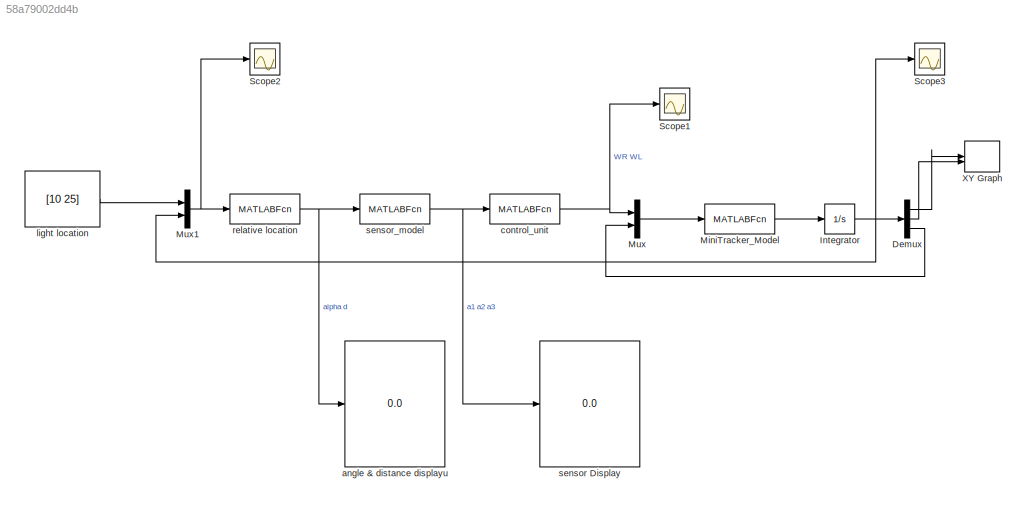
MODEL slx_58a79002dd4b
KIND model
CONFIG AbsTol = auto
CONFIG EnableMultiTasking = off
CONFIG FixedStep = auto
CONFIG MaxStep = auto
CONFIG MinStep = auto
CONFIG RelTol = 1e-3
CONFIG SampleTimeConstraint = Unconstrained
CONFIG SolverName = VariableStepAuto
CONFIG StartTime = 0.0
CONFIG StopTime = 100
BLOCK [Demux] Demux
  Outputs = 3
BLOCK [Integrator] Integrator
  InitialCondition = [0 0 pi/2]
BLOCK [MATLABFcn] MiniTracker_Model
  MATLABFcn = MiniTracker_model
BLOCK [Mux] Mux
  DisplayOption = bar
  Inputs = 2
BLOCK [Mux] Mux1
  DisplayOption = bar
  Inputs = 2
BLOCK [Scope] Scope1
  Floating = off
  NumInputPorts = 1
  ScopeSpecificationString = Simulink.scopes.TimeScopeBlockCfg('CurrentConfiguration', extmgr.ConfigurationSet(extmgr.Configuration('Core','General UI',true),extmgr.Configuration('Core','Source UI',true),extmgr.Configuration('Sources','WiredSimulink',true,'DataLoggingVariableName','ScopeData1'),extmgr.Configuration('Visuals','Time Domain',true,'SerializedDisplays',{struct('MinYLimReal','-1.24999','MaxYLimReal','1.25','YLabelR...<+1364ch>
BLOCK [Scope] Scope2
  Floating = off
  NumInputPorts = 1
  ScopeSpecificationString = Simulink.scopes.TimeScopeBlockCfg('CurrentConfiguration', extmgr.ConfigurationSet(extmgr.Configuration('Core','General UI',true),extmgr.Configuration('Core','Source UI',true),extmgr.Configuration('Sources','WiredSimulink',true,'DataLoggingVariableName','ScopeData2'),extmgr.Configuration('Visuals','Time Domain',true,'SerializedDisplays',{struct('MinYLimReal','-14.68573','MaxYLimReal','29.40953','YL...<+1611ch>
BLOCK [Scope] Scope3
  Floating = off
  NumInputPorts = 1
  ScopeSpecificationString = Simulink.scopes.TimeScopeBlockCfg('CurrentConfiguration', extmgr.ConfigurationSet(extmgr.Configuration('Core','General UI',true),extmgr.Configuration('Core','Source UI',true),extmgr.Configuration('Sources','WiredSimulink',true,'DataLoggingVariableName','ScopeData1'),extmgr.Configuration('Visuals','Time Domain',true,'SerializedDisplays',{struct('MinYLimReal','-12.26689','MaxYLimReal','7.63996','YLa...<+1500ch>
BLOCK [Record] XY Graph
  CompatibilityTag = XY
  FileSettingsInternal = {"entries":[{"content":{"excelSettings":{"content":{},"type":"Streamout.ExcelSettings"}},"type":"Streamout.FileSettingStorage","uuid":""}],"packageUris":["http:\/\/schema.mathworks.com\/mf0\/streamout_blocks\/R2020a"],"version":"1.0"}
  Layout = [1 1]
  SignalsInternal = {"entries":[{"content":{"signals":[{"content":{"blockPath":[],"dimensions":[1],"domain":"","lineColor":"#a2142f","plots":[ 1 ],"port":1,"sid":[""],"signalID":1,"signalName":"Demux:1"},"type":"RecordBlkView.Signal","uuid":""},{"content":{"blockPath":[],"dimensions":[1],"domain":"","lineColor":"#139fff","plots":[ 1 ],"port":2,"sid":[""],"signalID":2,"signalName":"Demux:2"},"type":"RecordBlkView.Sign...<+160ch>
  VisualizationBindings = {"xyplotplugin":{"info":[{"series":[{"bindingParametersList":[{"parameter":"X-Axis","signalID":1,"signalName":"Demux:1"},{"parameter":"Y-Axis","signalID":2,"signalName":"Demux:2"}],"seriesID":0}],"subplotID":1}]}}
BLOCK [Display] angle & distance displayu
  Decimation = 1
BLOCK [MATLABFcn] control_unit
  MATLABFcn = control_net(u(1),u(2),u(3))
BLOCK [Constant] light location
  Value = [10 25]
BLOCK [MATLABFcn] relative location
  MATLABFcn = relative_location
BLOCK [Display] sensor Display
  Decimation = 1
BLOCK [MATLABFcn] sensor_model
  MATLABFcn = sensor_model(u(1),u(2))
LINE Demux:1 -> XY Graph:1
LINE Demux:2 -> XY Graph:2
LINE Demux:3 -> Mux:2
NET Integrator:1 -> Demux:1, Mux1:2, Scope3:1
LINE MiniTracker_Model:1 -> Integrator:1
NET Mux1:1 -> Scope2:1, relative location:1
LINE Mux:1 -> MiniTracker_Model:1
NET control_unit:1 -> Mux:1, Scope1:1
LINE light location:1 -> Mux1:1
NET relative location:1 -> angle & distance displayu:1, sensor_model:1
NET sensor_model:1 -> control_unit:1, sensor Display:1
note: NET lines group one-source signal fan-out (src -> all destinations, sorted); 1:1 wires keep LINE
